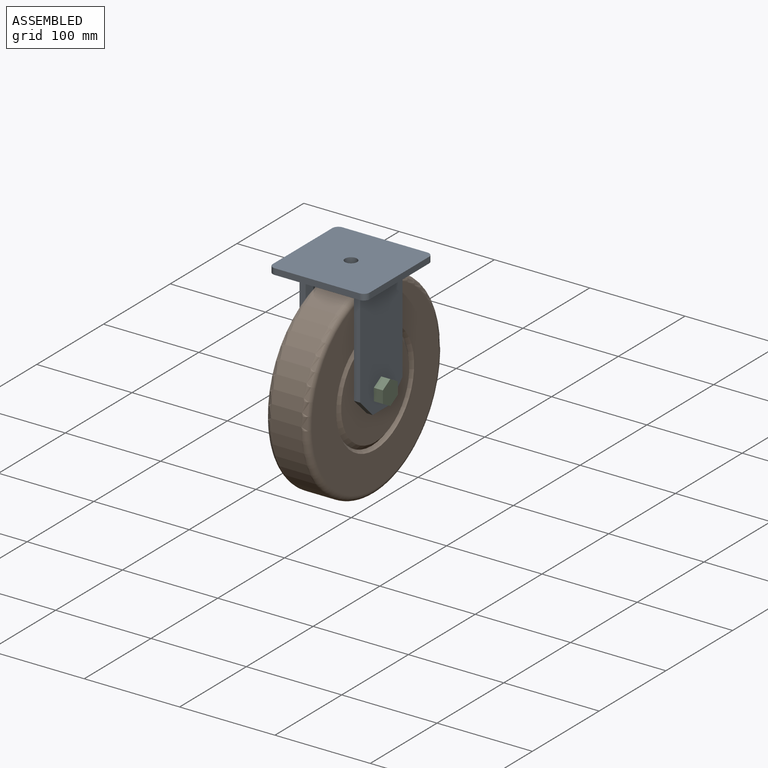
[diagram: assembled view]
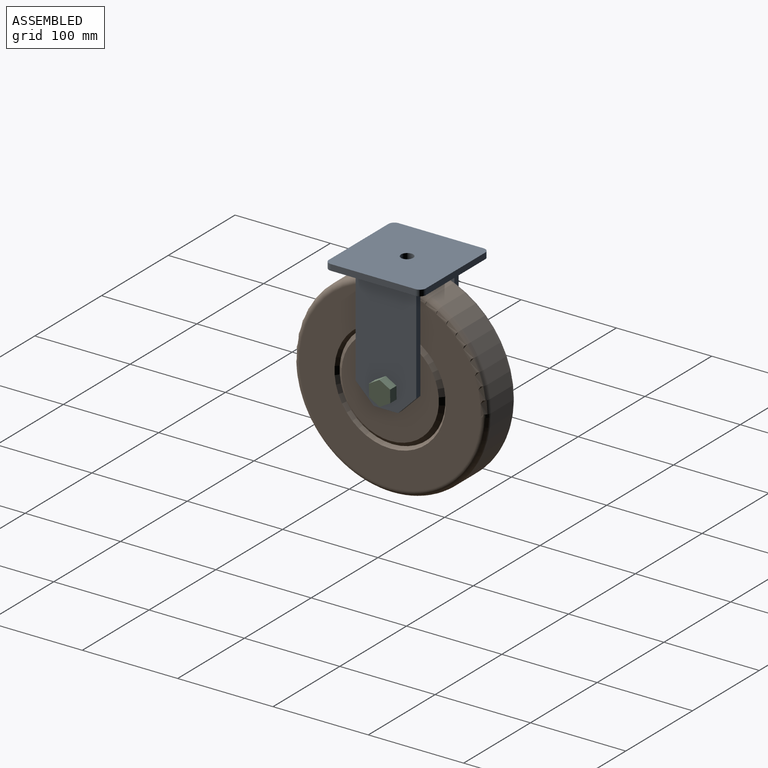
[diagram: assembled view, second angle]
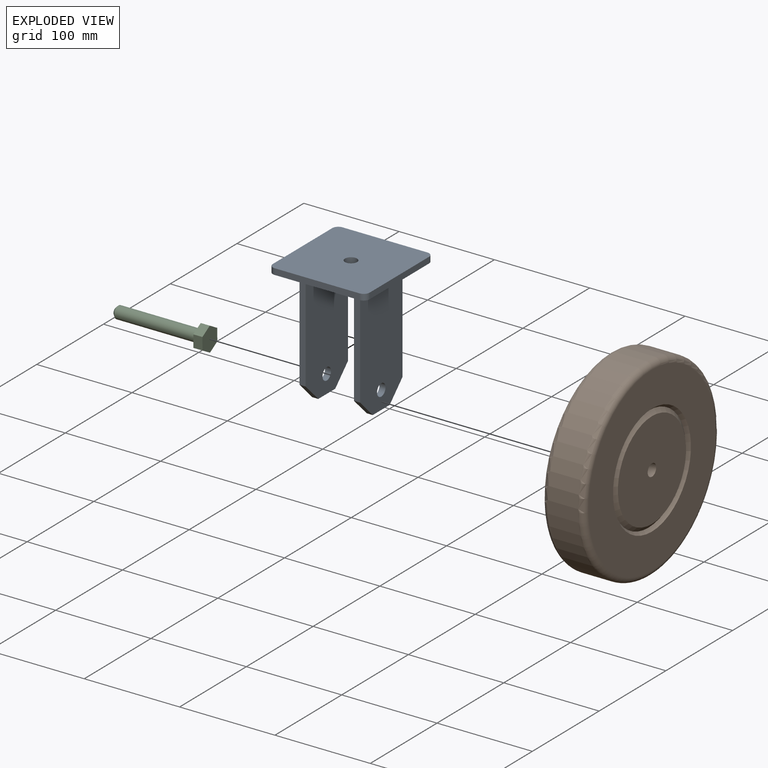
[diagram: exploded view]
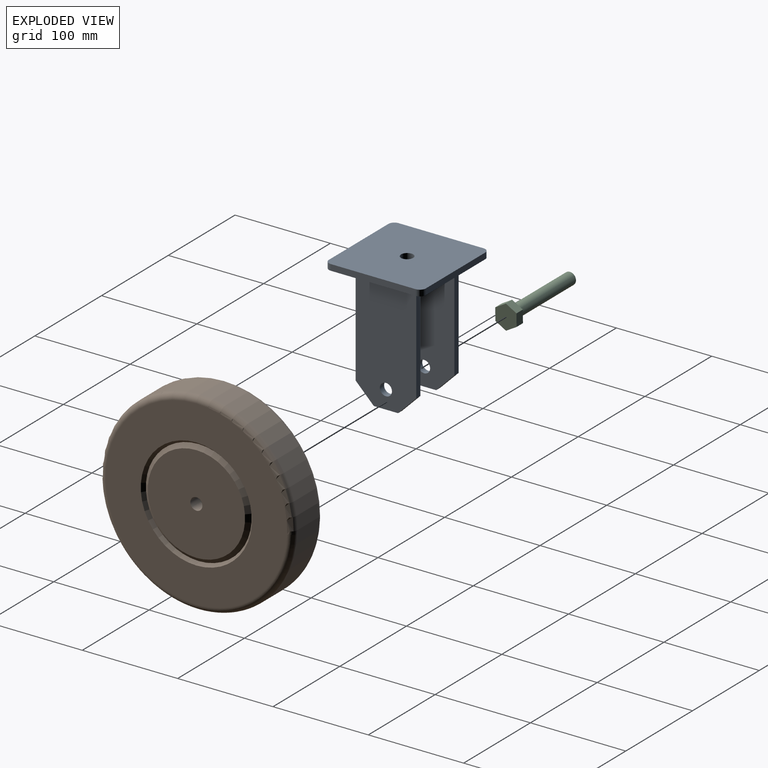
[diagram: exploded view, second angle]
ASSEMBLY  parts=3 mates=4
PART A: 27 faces, bbox 101.6x101.6x133.4 mm
  f0: plane 88.9x6.35mm, normal (0,-1,0), area 564.5mm2, adj f1,f8,f9,f10
  f1: cylinder r=6.35mm len=6.35mm, axis (0,0,1), area 63.3mm2, adj f0,f2,f9,f10
  f2: plane 88.9x6.35mm, normal (1,0,0), area 564.5mm2, adj f1,f3,f9,f10
  f3: cylinder r=6.35mm len=6.35mm, axis (0,0,1), area 63.3mm2, adj f2,f4,f9,f10
  f4: plane 88.9x6.35mm, normal (0,1,0), area 564.5mm2, adj f3,f5,f9,f10
  f5: cylinder r=6.35mm len=6.35mm, axis (0,0,1), area 63.3mm2, adj f4,f6,f9,f10
  f6: plane 88.9x6.35mm, normal (-1,0,0), area 564.5mm2, adj f5,f8,f9,f10
  f7: cylinder r=6.35mm len=12.7mm, axis (0,0,1), area 253.4mm2, adj f9,f10
  f8: cylinder r=6.35mm len=6.35mm, axis (0,0,1), area 63.3mm2, adj f0,f6,f9,f10
  f9: plane 101.6x101.6mm, normal (0,0,-1), area 9354.8mm2, adj f0,f1,f2,f3,f4,f5,f6,f7
  f10: plane 101.6x101.6mm, normal (0,0,1), area 10161.3mm2, adj f0,f1,f2,f3,f4,f5,f6,f7
  f11: plane 107.95x6.35mm, normal (0,-1,0), area 685.5mm2, adj f9,f12,f14,f22
  f12: plane 127x63.5mm, normal (-1,0,0), area 7574.9mm2, adj f9,f11,f13,f15,f22,f24,f26
  f13: plane 107.95x6.35mm, normal (0,1,0), area 685.5mm2, adj f9,f12,f14,f24
  f14: plane 127x63.5mm, normal (1,0,0), area 7574.9mm2, adj f9,f11,f13,f15,f22,f24,f26
  f15: plane 25.4x6.35mm, normal (0,0,-1), area 161.3mm2, adj f12,f14,f22,f24
  f16: plane 127x63.5mm, normal (-1,0,0), area 7574.9mm2, adj f9,f17,f19,f20,f21,f23,f25
  f17: plane 107.95x6.35mm, normal (0,1,0), area 685.5mm2, adj f9,f16,f18,f23
  f18: plane 127x63.5mm, normal (1,0,0), area 7574.9mm2, adj f9,f17,f19,f20,f21,f23,f25
  f19: plane 107.95x6.35mm, normal (0,-1,0), area 685.5mm2, adj f9,f16,f18,f21
  f20: plane 25.4x6.35mm, normal (0,0,-1), area 161.3mm2, adj f16,f18,f21,f23
  f21: plane 19.05x19.05mm, normal (0,-0.71,-0.71), area 171.1mm2, adj f16,f18,f19,f20
  f22: plane 19.05x19.05mm, normal (0,-0.71,-0.71), area 171.1mm2, adj f11,f12,f14,f15
  f23: plane 19.05x19.05mm, normal (0,0.71,-0.71), area 171.1mm2, adj f16,f17,f18,f20
  f24: plane 19.05x19.05mm, normal (0,0.71,-0.71), area 171.1mm2, adj f12,f13,f14,f15
  f25: cylinder r=6.35mm len=12.7mm, axis (1,0,0), area 253.4mm2, adj f16,f18
  f26: cylinder r=6.35mm len=12.7mm, axis (1,0,0), area 253.4mm2, adj f12,f14
PART B: 12 faces, bbox 44.5x219.9x219.9 mm
  f0: cylinder r=101.6mm len=203.2mm, axis (-1,0,0), area 20268.3mm2, adj f1,f10
  f1: torus R=95.25mm, axis (-1,0,0), area 6222.9mm2, adj f0,f2
  f2: plane 190.5x190.5mm, normal (1,0,0), area 17805.4mm2, adj f1,f3
  f3: cone r=58.35mm half-angle=38.9deg, axis (1,0,0), area 1634.3mm2, adj f2,f4
  f4: cone r=55.48mm half-angle=51.1deg, axis (-1,0,0), area 1898.5mm2, adj f3,f5
  f5: plane 102.14x102.14mm, normal (1,0,0), area 8066.6mm2, adj f4,f11
  f6: plane 101.6x101.6mm, normal (-1,0,0), area 7980.6mm2, adj f7,f11
  f7: cone r=50.8mm half-angle=52deg, axis (1,0,0), area 1986mm2, adj f6,f8
  f8: cone r=55.48mm half-angle=38deg, axis (-1,0,0), area 1664.2mm2, adj f7,f9
  f9: plane 190.5x190.5mm, normal (-1,0,0), area 17805.4mm2, adj f8,f10
  f10: torus R=95.25mm, axis (-1,0,0), area 6222.9mm2, adj f0,f9
  f11: cylinder r=6.35mm len=44.45mm, axis (1,0,0), area 1773.5mm2, adj f5,f6
PART C: 11 faces, bbox 98.4x22.4x25.7 mm
  f0: cylinder r=6.35mm len=86.36mm, axis (-1,0,0), area 3445.6mm2, adj f9,f10
  f1: plane 7.62x7.62mm, normal (-1,0,0), area 45.6mm2, adj f10
  f2: plane 12.85x9.53mm, normal (0,1,0.01), area 122.4mm2, adj f3,f7,f8,f9
  f3: plane 11.19x9.53mm, normal (0,0.49,0.87), area 122.4mm2, adj f2,f4,f8,f9
  f4: plane 11.08x9.53mm, normal (0,-0.51,0.86), area 122.4mm2, adj f3,f5,f8,f9
  f5: plane 12.85x9.53mm, normal (0,-1,-0.01), area 122.4mm2, adj f4,f6,f8,f9
  f6: plane 11.19x9.53mm, normal (0,-0.49,-0.87), area 122.4mm2, adj f5,f7,f8,f9
  f7: plane 11.08x9.53mm, normal (0,0.51,-0.86), area 122.4mm2, adj f2,f6,f8,f9
  f8: plane 25.71x22.38mm, normal (1,0,0), area 429.3mm2, adj f2,f3,f4,f5,f6,f7
  f9: plane 25.71x22.38mm, normal (-1,0,0), area 302.6mm2, adj f0,f2,f3,f4,f5,f6,f7
  f10: cone r=6.35mm half-angle=45deg, axis (1,0,0), area 114.7mm2, adj f0,f1
PLACE A rot(axis=(-1,0,0),0deg) t=(-363.45,113.57,-109.1)mm
PLACE B t=(-220.43,64.54,-223.46)mm
PLACE C rot(axis=(-1,0,0),0deg) t=(14.17,8.82,-90.37)mm
MATE planar A.f14 <-> C.f0  axis (1,0,0) through (103.07,-159.44,-175.47)mm
MATE cylindrical A.f25 <-> C.f0  axis (1,0,0) through (103.07,-159.44,-223.46)mm
MATE cylindrical A.f25 <-> B.f0  axis (-1,0,0) through (96.72,-159.44,-223.46)mm
MATE planar A.f25 <-> B.f0  axis (-1,0,0) through (96.72,-159.44,-223.46)mm
